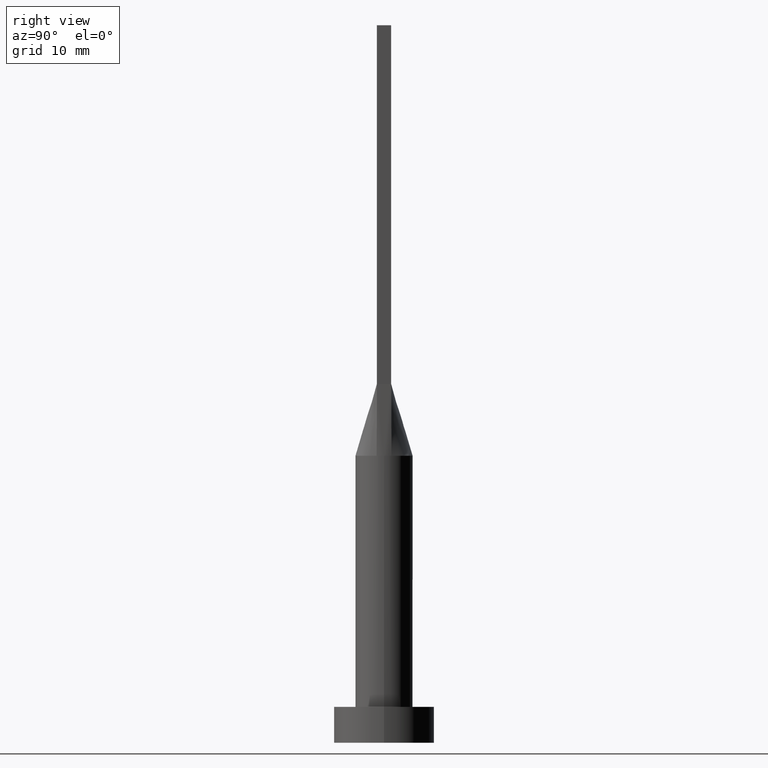
[diagram: clean part render]
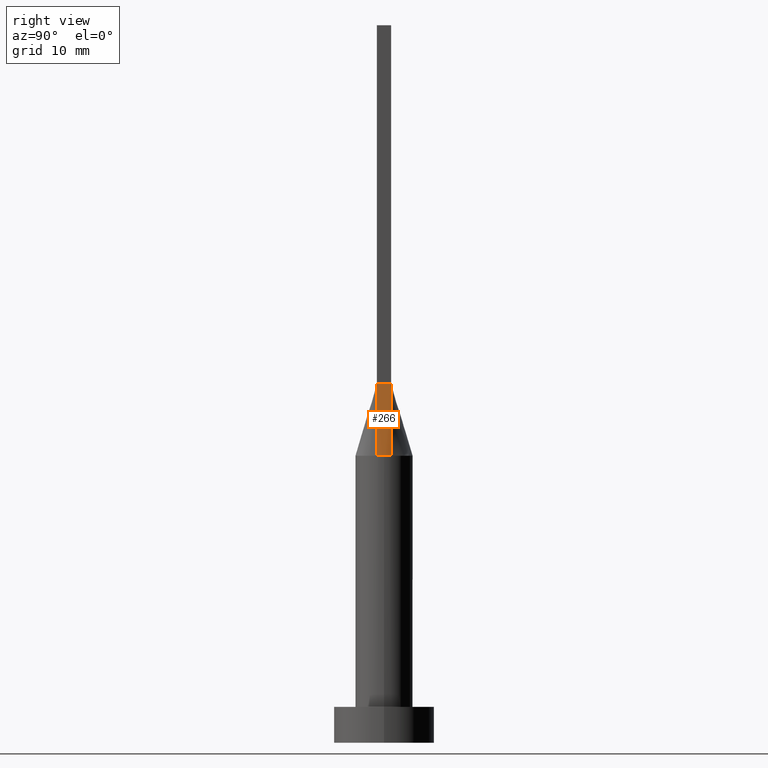
[diagram: same view with one face highlighted and labeled with its STEP entity id]
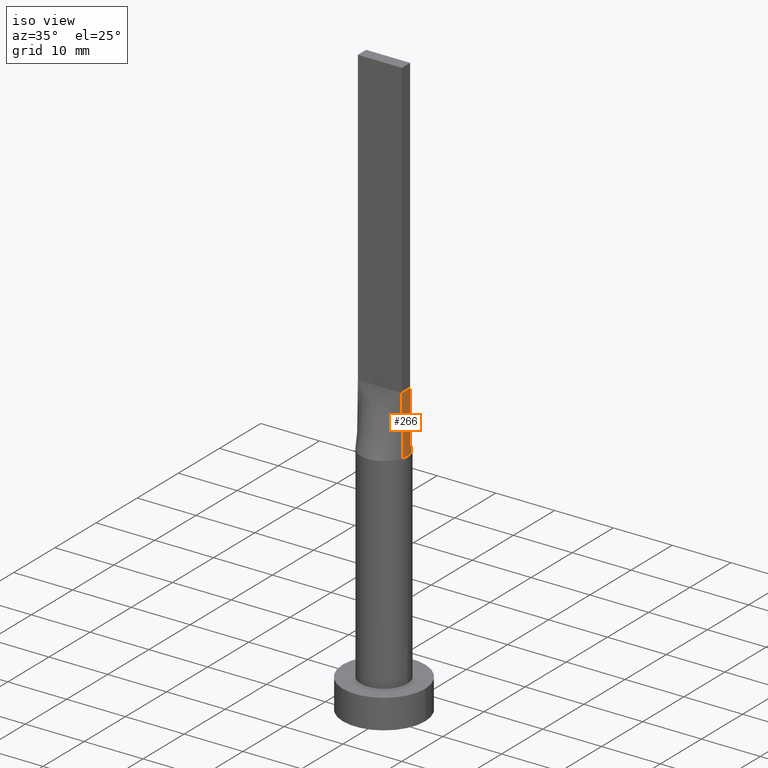
[diagram: same view with one face highlighted and labeled with its STEP entity id]
A machine part, right view. The second image highlights one B-rep face of the part: STEP entity #266.
A second angle (iso view) of the same face is appended — the face is thin or edge-on in the first view.
In plain terms, the highlighted face is a freeform B-spline surface patch.
Its self-contained STEP definition (entity closure, byte-faithful):
#2 = CIRCLE ( 'NONE', #190, 4.000000000000000000 ) ;
#8 = VERTEX_POINT ( 'NONE', #10 ) ;
#10 = CARTESIAN_POINT ( 'NONE',  ( 3.750000000000000000, 1.000000000000000000, 50.00000000000000000 ) ) ;
#15 = EDGE_CURVE ( 'NONE', #191, #323, #188, .T. ) ;
#26 = CARTESIAN_POINT ( 'NONE',  ( 3.865212754195084699, 1.030724393897464841, 40.00000000000000000 ) ) ;
#43 = CARTESIAN_POINT ( 'NONE',  ( 3.953459813730020311, 0.6987003947724492736, 40.00000000000000000 ) ) ;
#44 = CARTESIAN_POINT ( 'NONE',  ( 0.000000000000000000, 0.000000000000000000, 40.00000000000000000 ) ) ;
#55 = CARTESIAN_POINT ( 'NONE',  ( 3.807469879202492802, -1.015325301120664214, 45.00000000000000000 ) ) ;
#83 = CARTESIAN_POINT ( 'NONE',  ( 3.953459813730019423, -0.6987003947724502728, 40.00000000000000000 ) ) ;
#87 = DIRECTION ( 'NONE',  ( 1.000000000000000000, -6.217248937900876626E-15, 0.000000000000000000 ) ) ;
#90 = EDGE_CURVE ( 'NONE', #234, #431, #2, .T. ) ;
#94 = LINE ( 'NONE', #179, #435 ) ;
#126 = ORIENTED_EDGE ( 'NONE', *, *, #532, .T. ) ;
#128 = CARTESIAN_POINT ( 'NONE',  ( 4.000000000000000000, -0.3494497975066829798, 39.99999999999999289 ) ) ;
#131 = CARTESIAN_POINT ( 'NONE',  ( 3.749999999999999556, -0.3333333333333329818, 50.00000000000000000 ) ) ;
#133 = ORIENTED_EDGE ( 'NONE', *, *, #15, .F. ) ;
#134 = CIRCLE ( 'NONE', #253, 4.000000000000000000 ) ;
#138 = DIRECTION ( 'NONE',  ( -0.01149316269309399834, 0.003064843384825015424, 0.9999292544707033548 ) ) ;
#171 = FACE_OUTER_BOUND ( 'NONE', #395, .T. ) ;
#172 = ORIENTED_EDGE ( 'NONE', *, *, #299, .F. ) ;
#173 = CARTESIAN_POINT ( 'NONE',  ( 3.865244591400370577, -1.030732999276501527, 40.00000000000000000 ) ) ;
#178 = CARTESIAN_POINT ( 'NONE',  ( 3.807469879202492358, 1.015325301120664436, 45.00000000000000000 ) ) ;
#179 = CARTESIAN_POINT ( 'NONE',  ( 3.750000000000000000, 1.000000000000000000, 50.00000000000000000 ) ) ;
#185 = B_SPLINE_SURFACE_WITH_KNOTS ( 'NONE', 3, 1, ( 
 ( #310, #357 ),
 ( #83, #394 ),
 ( #128, #131 ),
 ( #259, #314 ),
 ( #43, #484 ),
 ( #360, #487 ) ),
 .UNSPECIFIED., .F., .F., .F.,
 ( 4, 2, 4 ),
 ( 2, 2 ),
 ( 0.000000000000000000, 0.5000000000000000000, 1.000000000000000000 ),
 ( 0.000000000000000000, 1.000000000000000000 ),
 .UNSPECIFIED. ) ;
#188 = LINE ( 'NONE', #55, #286 ) ;
#190 = AXIS2_PLACEMENT_3D ( 'NONE', #561, #248, #251 ) ;
#191 = VERTEX_POINT ( 'NONE', #173 ) ;
#203 = ORIENTED_EDGE ( 'NONE', *, *, #90, .T. ) ;
#234 = VERTEX_POINT ( 'NONE', #399 ) ;
#248 = DIRECTION ( 'NONE',  ( 0.000000000000000000, 0.000000000000000000, 1.000000000000000000 ) ) ;
#251 = DIRECTION ( 'NONE',  ( 1.000000000000000000, 0.000000000000000000, 0.000000000000000000 ) ) ;
#253 = AXIS2_PLACEMENT_3D ( 'NONE', #44, #572, #87 ) ;
#259 = CARTESIAN_POINT ( 'NONE',  ( 3.999999999999999112, 0.3494497975066819251, 39.99999999999998579 ) ) ;
#266 = ADVANCED_FACE ( 'NONE', ( #171 ), #185, .T. ) ;
#286 = VECTOR ( 'NONE', #138, 1000.000000000000114 ) ;
#299 = EDGE_CURVE ( 'NONE', #323, #8, #94, .T. ) ;
#310 = CARTESIAN_POINT ( 'NONE',  ( 3.864939758404985160, -1.030650602241329539, 40.00000000000000000 ) ) ;
#314 = CARTESIAN_POINT ( 'NONE',  ( 3.749999999999999556, 0.3333333333333336479, 50.00000000000000000 ) ) ;
#315 = LINE ( 'NONE', #178, #545 ) ;
#323 = VERTEX_POINT ( 'NONE', #578 ) ;
#357 = CARTESIAN_POINT ( 'NONE',  ( 3.750000000000000000, -1.000000000000000000, 50.00000000000000000 ) ) ;
#360 = CARTESIAN_POINT ( 'NONE',  ( 3.864939758404985160, 1.030650602241328873, 40.00000000000000000 ) ) ;
#394 = CARTESIAN_POINT ( 'NONE',  ( 3.749999999999999556, -0.6666666666666664076, 50.00000000000000000 ) ) ;
#395 = EDGE_LOOP ( 'NONE', ( #126, #203, #461, #172, #133 ) ) ;
#399 = CARTESIAN_POINT ( 'NONE',  ( 4.000000000000000000, -1.256865613583667397E-17, 39.99999999999999289 ) ) ;
#431 = VERTEX_POINT ( 'NONE', #26 ) ;
#435 = VECTOR ( 'NONE', #490, 1000.000000000000000 ) ;
#461 = ORIENTED_EDGE ( 'NONE', *, *, #542, .T. ) ;
#484 = CARTESIAN_POINT ( 'NONE',  ( 3.749999999999999556, 0.6666666666666668517, 50.00000000000000000 ) ) ;
#487 = CARTESIAN_POINT ( 'NONE',  ( 3.750000000000000000, 1.000000000000000000, 50.00000000000000000 ) ) ;
#490 = DIRECTION ( 'NONE',  ( -0.000000000000000000, 1.000000000000000000, -0.000000000000000000 ) ) ;
#532 = EDGE_CURVE ( 'NONE', #191, #234, #134, .T. ) ;
#542 = EDGE_CURVE ( 'NONE', #431, #8, #315, .T. ) ;
#545 = VECTOR ( 'NONE', #562, 1000.000000000000114 ) ;
#561 = CARTESIAN_POINT ( 'NONE',  ( 0.000000000000000000, 0.000000000000000000, 40.00000000000000000 ) ) ;
#562 = DIRECTION ( 'NONE',  ( -0.01149316269309395670, -0.003064843384824993307, 0.9999292544707033548 ) ) ;
#572 = DIRECTION ( 'NONE',  ( 0.000000000000000000, 0.000000000000000000, 1.000000000000000000 ) ) ;
#578 = CARTESIAN_POINT ( 'NONE',  ( 3.750000000000000000, -0.9999999999999997780, 50.00000000000000000 ) ) ;